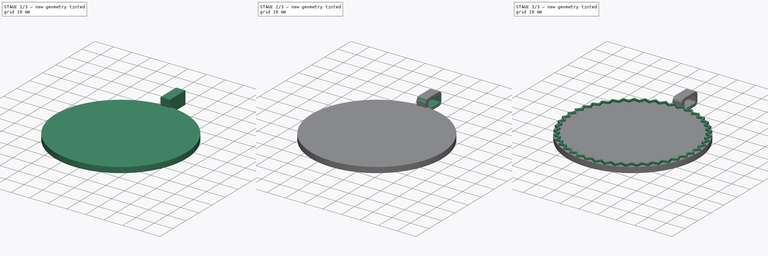
[diagram: build sequence overview — one tinted view per stage of 3, left to right]
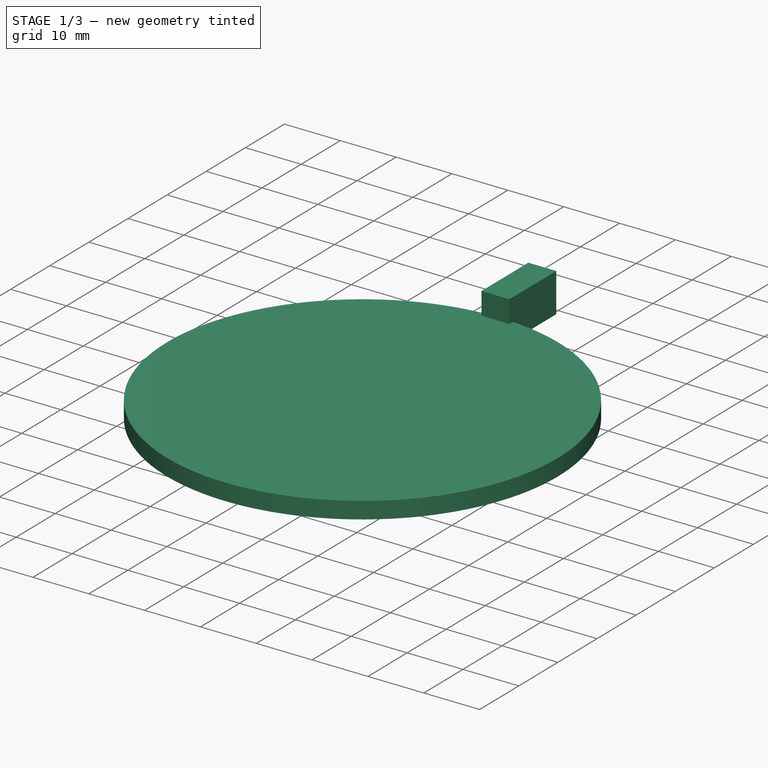
[diagram: stage 1 of 3 — iso view after this stage's code; geometry added in this stage tinted green]
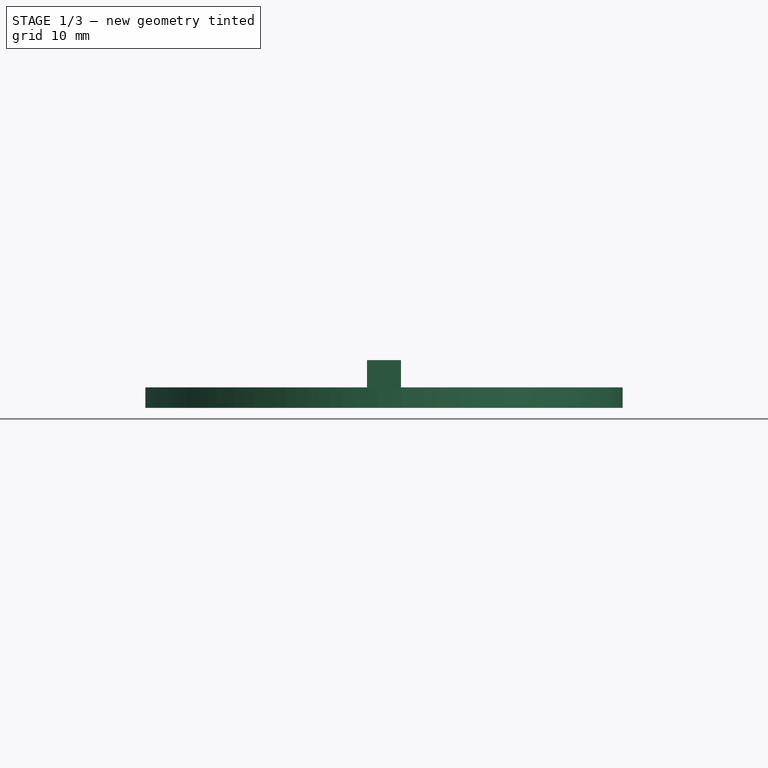
[diagram: stage 1 of 3 — front view after this stage's code; geometry added in this stage tinted green]
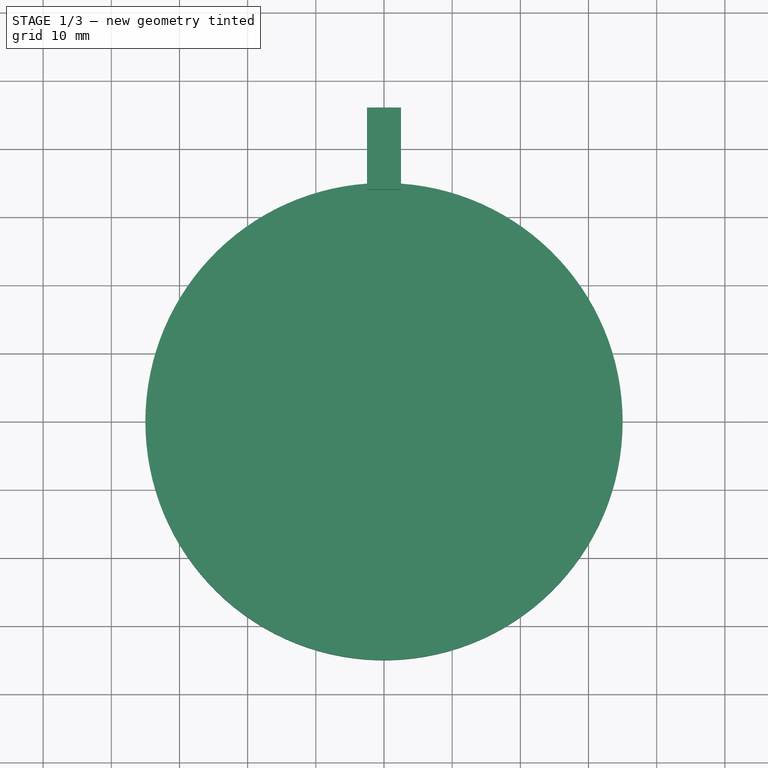
[diagram: stage 1 of 3 — top view after this stage's code; geometry added in this stage tinted green]
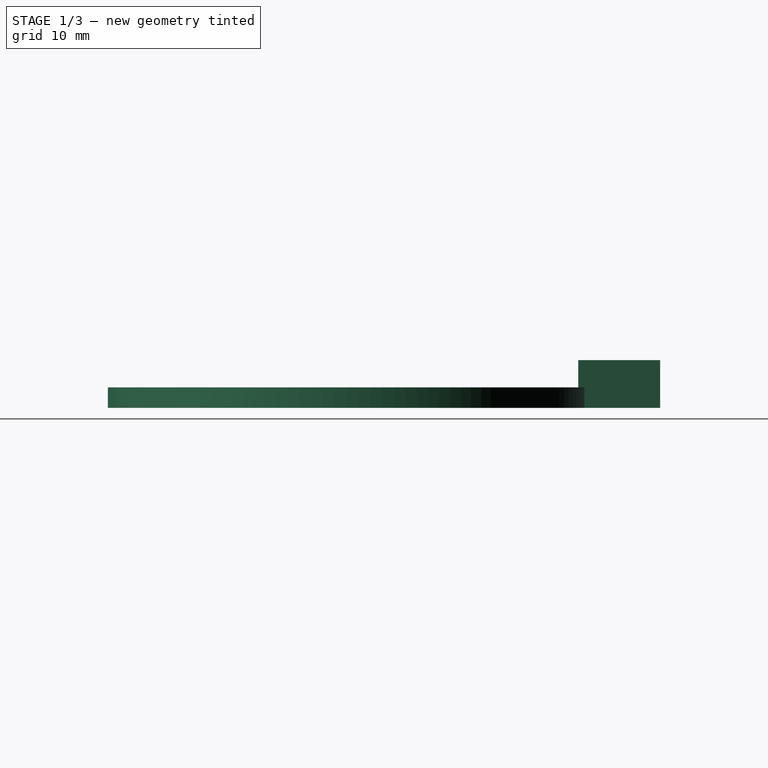
[diagram: stage 1 of 3 — right view after this stage's code; geometry added in this stage tinted green]
FCSTD DOCUMENT  (FreeCAD 1.0R39319 (Git))
Label: медаль кругла 70 х 4 мм з вушком зубчики
License: All rights reserved
LicenseURL: https://en.wikipedia.org/wiki/All_rights_reserved
objects: Sketcher::SketchObject×4, PartDesign::Pad×3, PartDesign::Fillet×1, PartDesign::Pocket×1, PartDesign::PolarPattern×1, PartDesign::Body×1
note: 26 computed .brp shape members not serialized (recipe doc carries the construction recipe); baked Part::Feature solids carry a one-line shape summary decoded from their .brp

FEATURE [Sketcher::SketchObject] Sketch
  ArcFitTolerance = 1e-06
  AttachmentSupport = -> [XY_Plane]
  FullyConstrained = true
  MakeInternals = false
  MapMode = 5
  sketch-geometry (1):
    g0: Circle CenterX=0 CenterY=0 CenterZ=0 NormalX=0 NormalY=0 NormalZ=1 AngleXU=0 Radius=35
  constraints (2):
    c: Diameter(g0) = 70
    c: Coincident(g0,g-1)
FEATURE [PartDesign::Pad] Pad  label="основа"
  Direction = (0,0,1)
  Length = 3
  Length2 = 10
  Profile = -> Sketch
  ReferenceAxis = -> Sketch [N_Axis]
  Refine = true
  Suppressed = false
  Type = 0
FEATURE [Sketcher::SketchObject] Sketch001
  ArcFitTolerance = 1e-06
  AttachmentSupport = -> [XY_Plane]
  FullyConstrained = false
  MakeInternals = false
  MapMode = 5
  sketch-geometry (5):
    g0: LineSegment StartX=-2.5 StartY=34 StartZ=0 EndX=2.5 EndY=34 EndZ=0
    g1: LineSegment StartX=2.5 StartY=34 StartZ=0 EndX=2.5 EndY=46 EndZ=0
    g2: LineSegment StartX=2.5 StartY=46 StartZ=0 EndX=-2.5 EndY=46 EndZ=0
    g3: LineSegment StartX=-2.5 StartY=46 StartZ=0 EndX=-2.5 EndY=34 EndZ=0
    g4: GeomPoint [constr] X=0 Y=40 Z=0
  constraints (12):
    c: Coincident(g0,g1)
    c: Coincident(g1,g2)
    c: Coincident(g2,g3)
    c: Coincident(g3,g0)
    c: Horizontal(g0)
    c: Horizontal(g2)
    c: Vertical(g1)
    c: Vertical(g3)
    c: Symmetric(g2,g0,g4)
    c: Distance(g1,g3) = 5
    c: Distance(g0,g2) = 12
    c: PointOnObject(g4,g-2)
FEATURE [PartDesign::Pad] Pad001  label="вушко"
  BaseFeature = -> Pad
  Direction = (0,0,1)
  Length = 7
  Length2 = 10
  Profile = -> Sketch001
  ReferenceAxis = -> Sketch001 [N_Axis]
  Refine = true
  Suppressed = false
  Type = 0
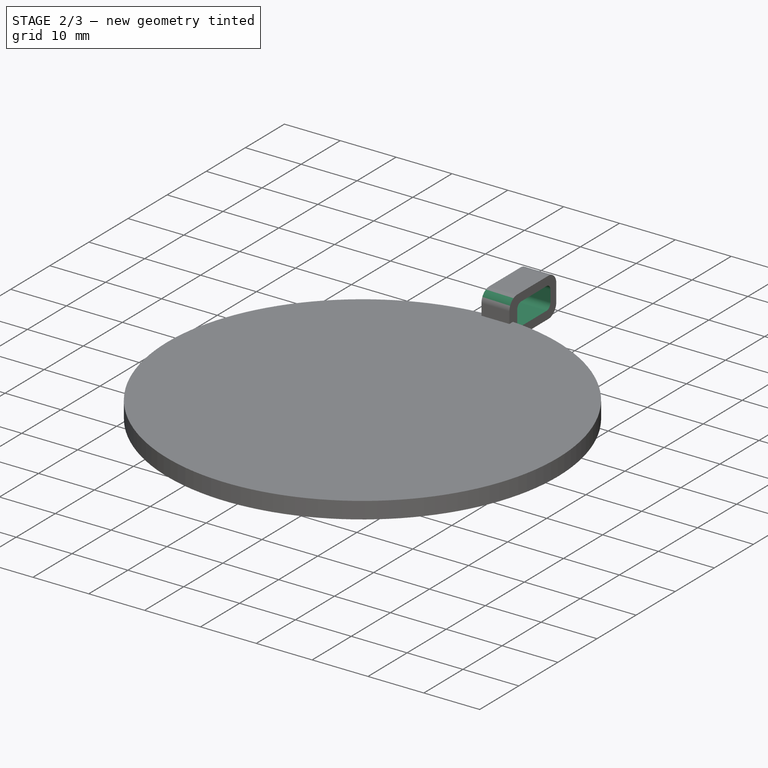
[diagram: stage 2 of 3 — iso view after this stage's code; geometry added in this stage tinted green]
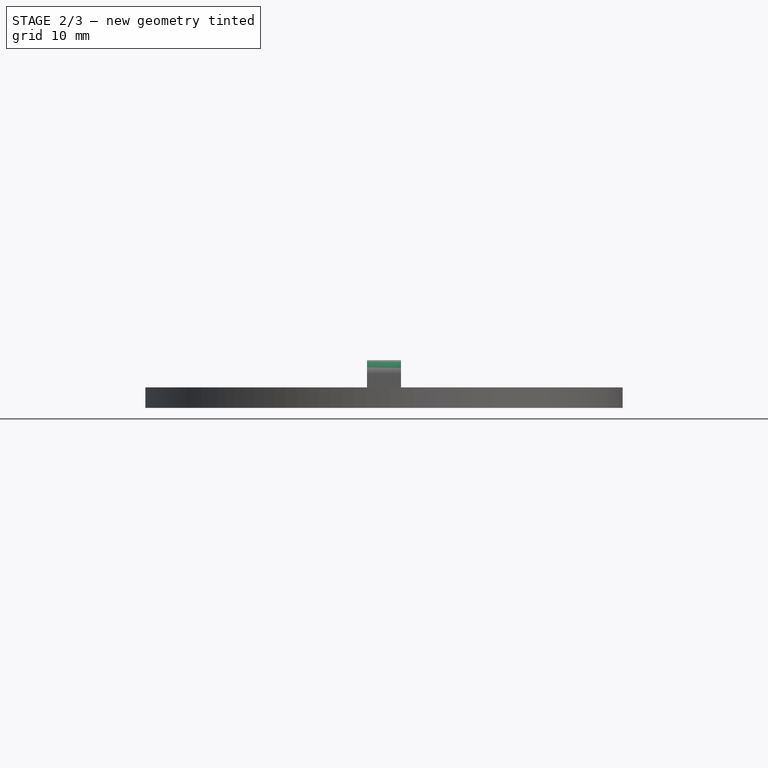
[diagram: stage 2 of 3 — front view after this stage's code; geometry added in this stage tinted green]
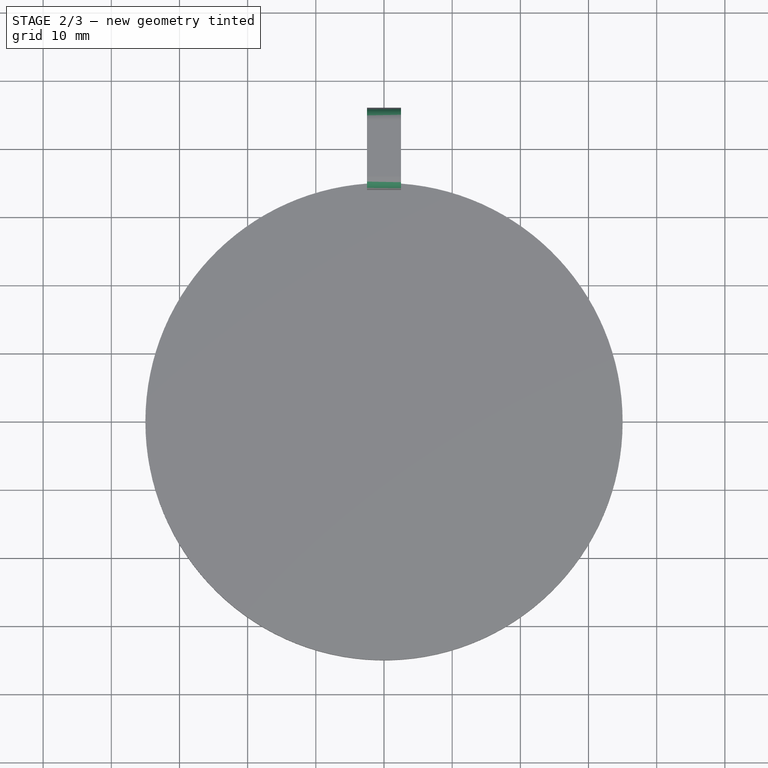
[diagram: stage 2 of 3 — top view after this stage's code; geometry added in this stage tinted green]
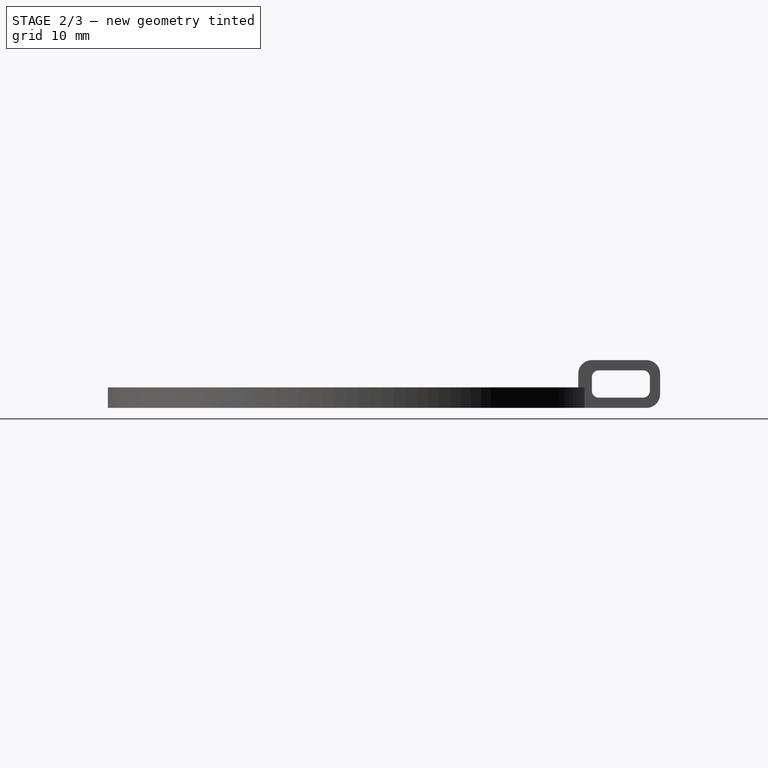
[diagram: stage 2 of 3 — right view after this stage's code; geometry added in this stage tinted green]
FEATURE [PartDesign::Fillet] Fillet
  Base = -> Pad001 [Edge14,Edge13,Edge12]
  BaseFeature = -> Pad001
  Radius = 1.99
  Refine = true
  SupportTransform = false
  Suppressed = false
  UseAllEdges = false
FEATURE [Sketcher::SketchObject] Sketch002
  ArcFitTolerance = 1e-06
  AttachmentSupport = -> [Fillet]
  FullyConstrained = false
  MakeInternals = false
  MapMode = 5
  Placement = pos=(2.5,0,0) rot=(0.57735,0.57735,0.57735;2.0944rad)
  sketch-geometry (10):
    g0: LineSegment StartX=36 StartY=4.5 StartZ=0 EndX=36 EndY=2.5 EndZ=0
    g1: LineSegment StartX=37 StartY=1.5 StartZ=0 EndX=43.5 EndY=1.5 EndZ=0
    g2: LineSegment StartX=44.5 StartY=2.5 StartZ=0 EndX=44.5 EndY=4.5 EndZ=0
    g3: LineSegment StartX=43.5 StartY=5.5 StartZ=0 EndX=37 EndY=5.5 EndZ=0
    g4: ArcOfCircle CenterX=37 CenterY=4.5 CenterZ=0 NormalX=0 NormalY=0 NormalZ=1 AngleXU=0 Radius=1 StartAngle=1.5708 EndAngle=3.14159
    g5: ArcOfCircle CenterX=37 CenterY=2.5 CenterZ=0 NormalX=0 NormalY=0 NormalZ=1 AngleXU=0 Radius=1 StartAngle=3.14159 EndAngle=4.71239
    g6: ArcOfCircle CenterX=43.5 CenterY=2.5 CenterZ=0 NormalX=0 NormalY=0 NormalZ=1 AngleXU=0 Radius=1 StartAngle=4.71239 EndAngle=6.28319
    g7: ArcOfCircle CenterX=43.5 CenterY=4.5 CenterZ=0 NormalX=0 NormalY=0 NormalZ=1 AngleXU=0 Radius=1 StartAngle=0 EndAngle=1.5708
    g8: GeomPoint [constr] X=36 Y=5.5 Z=0
    g9: GeomPoint [constr] X=44.5 Y=1.5 Z=0
  constraints (22):
    c: Tangent(g0,g4) = -1.5708
    c: Tangent(g0,g5) = -1.5708
    c: Tangent(g1,g5) = -1.5708
    c: Tangent(g1,g6) = -1.5708
    c: Tangent(g2,g6) = -1.5708
    c: Tangent(g2,g7) = -1.5708
    c: Tangent(g3,g7) = -1.5708
    c: Tangent(g3,g4) = -1.5708
    c: Vertical(g0)
    c: Vertical(g2)
    c: Horizontal(g1)
    c: Horizontal(g3)
    c: Equal(g4,g5)
    c: Equal(g5,g6)
    c: Equal(g6,g7)
    c: PointOnObject(g8,g0)
    c: PointOnObject(g8,g3)
    c: PointOnObject(g9,g1)
    c: PointOnObject(g9,g2)
    c: Distance(g0,g2) = 8.5
    c: Distance(g1,g3) = 4
    c: Radius(g5) = 1
FEATURE [PartDesign::Pocket] Pocket  label="отвір у вушкі"
  BaseFeature = -> Fillet
  Direction = (-1,0,0)
  Length = 5
  Length2 = 5
  Profile = -> Sketch002
  ReferenceAxis = -> Sketch002 [N_Axis]
  Refine = true
  Suppressed = false
  Type = 0
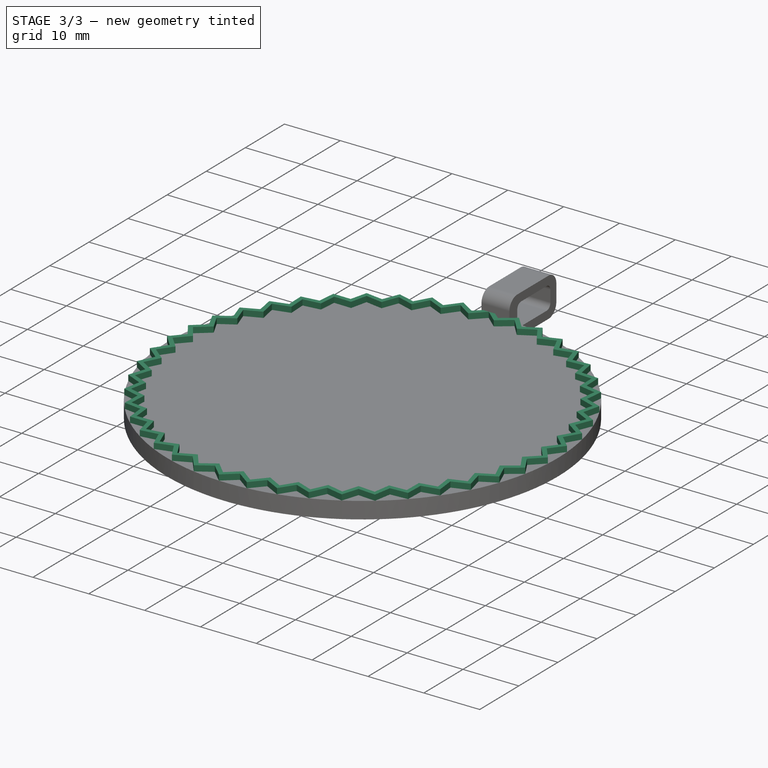
[diagram: stage 3 of 3 — iso view after this stage's code; geometry added in this stage tinted green]
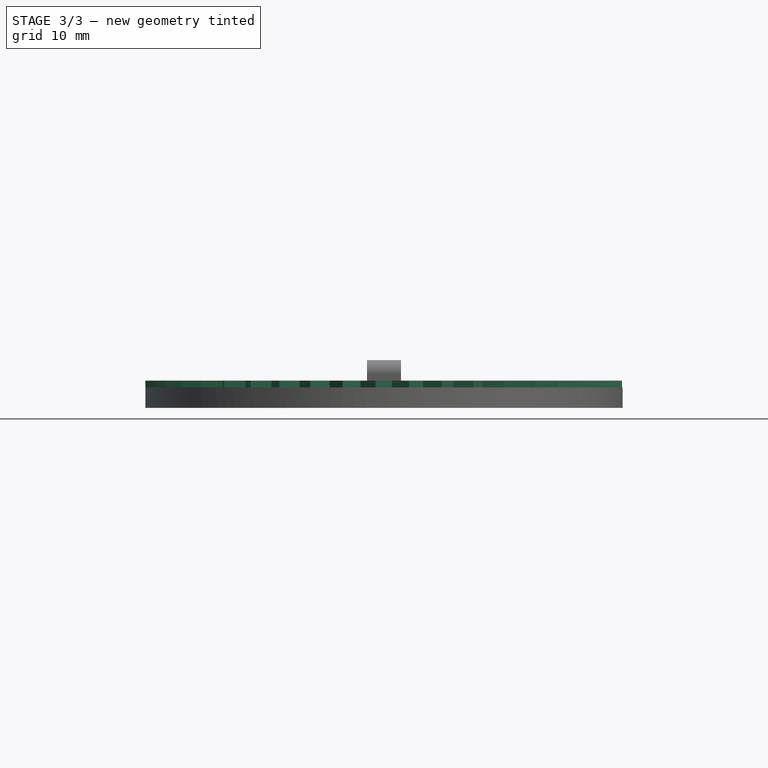
[diagram: stage 3 of 3 — front view after this stage's code; geometry added in this stage tinted green]
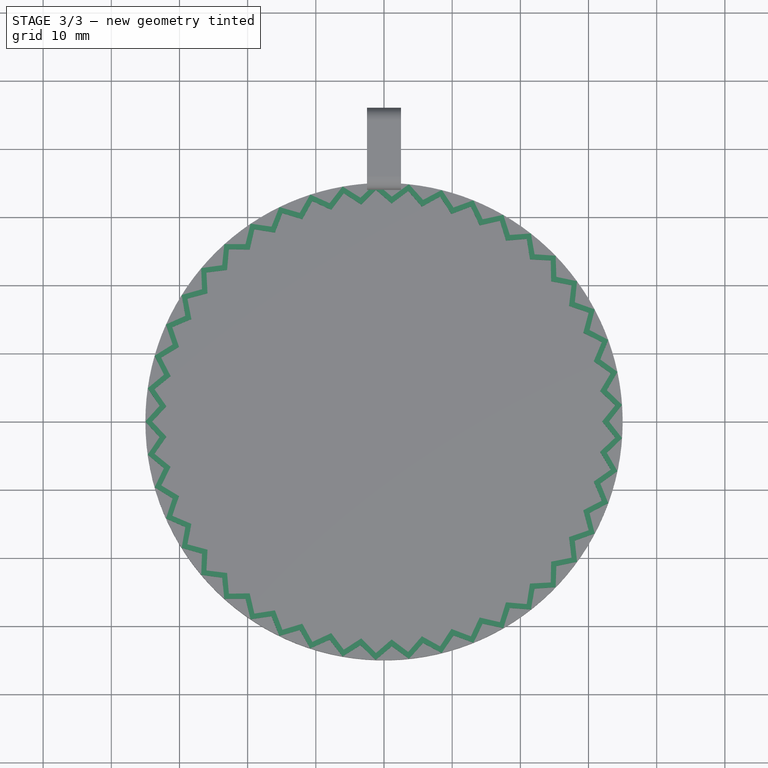
[diagram: stage 3 of 3 — top view after this stage's code; geometry added in this stage tinted green]
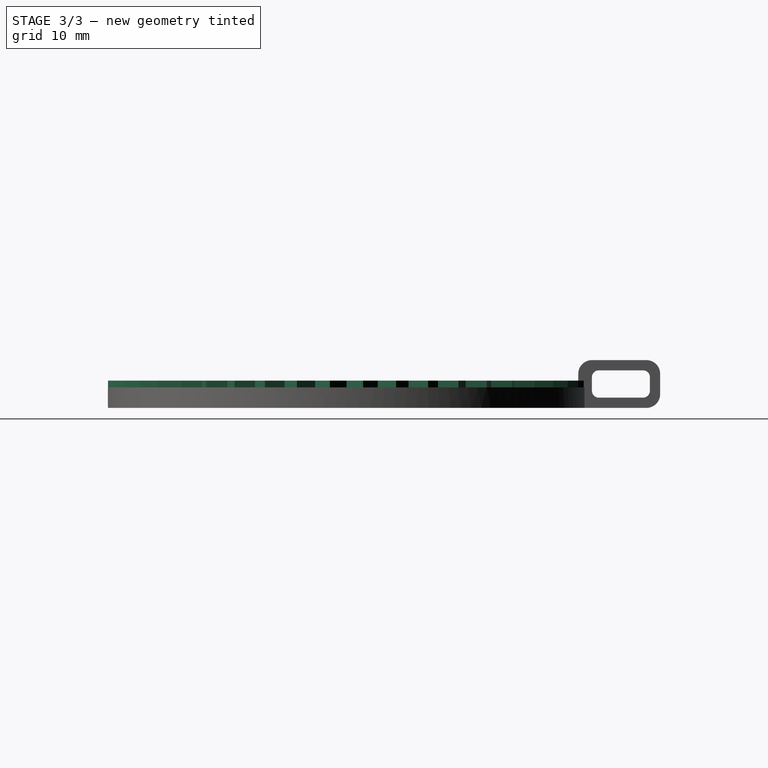
[diagram: stage 3 of 3 — right view after this stage's code; geometry added in this stage tinted green]
FEATURE [Sketcher::SketchObject] Sketch003
  ArcFitTolerance = 1e-06
  AttachmentSupport = -> [Pocket]
  FullyConstrained = false
  MakeInternals = false
  MapMode = 5
  Placement = pos=(0,0,3) rot=(0,0,1;0rad)
  sketch-geometry (18):
    g0: Circle [constr] CenterX=0 CenterY=0 CenterZ=0 NormalX=0 NormalY=0 NormalZ=1 AngleXU=0 Radius=33
    g1: Circle [constr] CenterX=0 CenterY=0 CenterZ=0 NormalX=0 NormalY=0 NormalZ=1 AngleXU=0 Radius=35
    g2: LineSegment [constr] StartX=0 StartY=0 StartZ=0 EndX=39.1714 EndY=0 EndZ=0
    g3: LineSegment [constr] StartX=0 StartY=0 StartZ=0 EndX=39.9827 EndY=-2.79586 EndZ=0
    g4: LineSegment [constr] StartX=0 StartY=0 StartZ=0 EndX=40.813 EndY=-5.73589 EndZ=0
    g5: GeomPoint [constr] X=33 Y=0 Z=0
    g6: GeomPoint [constr] X=34.9147 Y=-2.44148 Z=0
    g7: GeomPoint [constr] X=32.6788 Y=-4.59271 Z=0
    g8: LineSegment StartX=33 StartY=0 StartZ=0 EndX=34.9147 EndY=-2.44148 EndZ=0
    g9: LineSegment StartX=34.9147 StartY=-2.44148 StartZ=0 EndX=32.6788 EndY=-4.59271 EndZ=0
    g10: GeomPoint [constr] X=32 Y=0 Z=0
    g11: GeomPoint [constr] X=33.9172 Y=-2.37172 Z=0
    g12: GeomPoint [constr] X=31.6886 Y=-4.45354 Z=0
    g13: LineSegment StartX=32 StartY=0 StartZ=0 EndX=33.9172 EndY=-2.37172 EndZ=0
    g14: LineSegment StartX=33.9172 StartY=-2.37172 StartZ=0 EndX=31.6886 EndY=-4.45354 EndZ=0
    g15: LineSegment StartX=32 StartY=0 StartZ=0 EndX=33 EndY=0 EndZ=0
    g16: LineSegment StartX=31.6886 StartY=-4.45354 StartZ=0 EndX=32.6788 EndY=-4.59271 EndZ=0
    g17: Circle [constr] CenterX=0 CenterY=0 CenterZ=0 NormalX=0 NormalY=0 NormalZ=1 AngleXU=0 Radius=32
  constraints (36):
    c: Diameter(g0) = 66
    c: Coincident(g0,g-1)
    c: Diameter(g1) = 70
    c: Coincident(g1,g0)
    c: Coincident(g2,g0)
    c: PointOnObject(g2,g-1)
    c: Coincident(g3,g0)
    c: Angle(g-1,g4) = -0.139626
    c: Coincident(g4,g0)
    c: Angle(g3,g2) = 0.0698132
    c: PointOnObject(g5,g0)
    c: PointOnObject(g7,g0)
    c: PointOnObject(g5,g2)
    c: PointOnObject(g7,g4)
    c: Coincident(g8,g5)
    c: Coincident(g8,g6)
    c: Coincident(g8,g9)
    c: Coincident(g9,g7)
    c: PointOnObject(g10,g2)
    c: PointOnObject(g11,g3)
    c: PointOnObject(g12,g4)
    c: DistanceX(g0,g10) = 32
    c: Coincident(g13,g10)
    c: Coincident(g13,g11)
    c: Coincident(g13,g14)
    c: Coincident(g14,g12)
    c: PointOnObject(g6,g3)
    c: PointOnObject(g6,g1)
    c: Distance(g12,g-1) = 32
    c: Coincident(g15,g10)
    c: Coincident(g15,g5)
    c: Coincident(g16,g12)
    c: Coincident(g16,g7)
    c: Distance(g11,g-1) = 34
    c: Diameter(g17) = 64
    c: Coincident(g17,g0)
FEATURE [PartDesign::Pad] Pad002
  BaseFeature = -> Pocket
  Direction = (0,0,1)
  Length = 1
  Length2 = 10
  Profile = -> Sketch003
  ReferenceAxis = -> Sketch003 [N_Axis]
  Refine = true
  Suppressed = false
  Type = 0
FEATURE [PartDesign::PolarPattern] PolarPattern
  Angle = 360
  Axis = -> Sketch003 [N_Axis]
  BaseFeature = -> Pad002
  Mode = 0
  Occurrences = 45
  Offset = 120
  Originals = -> [Pad002]
  Refine = true
  Suppressed = false
  TransformMode = 0
FEATURE [PartDesign::Body] Body  label="Тіло"
  AllowCompound = false
  Group = -> [Sketch,Pad,Sketch001,Pad001,Fillet,Sketch002,Pocket,Sketch003,Pad002,PolarPattern]
  Origin = -> Origin
  Tip = -> PolarPattern
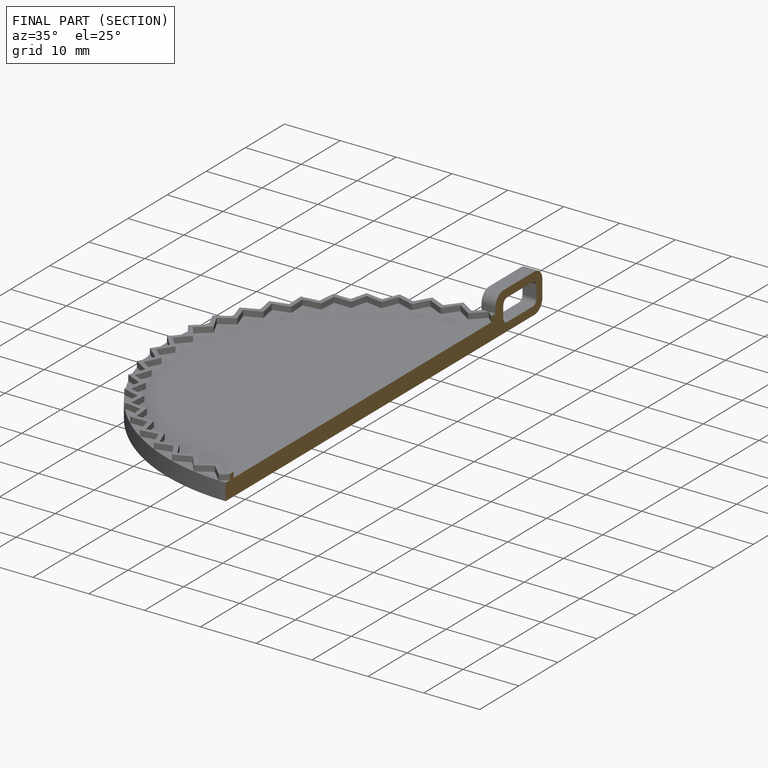
[diagram: finished part — half-section view (interior)]
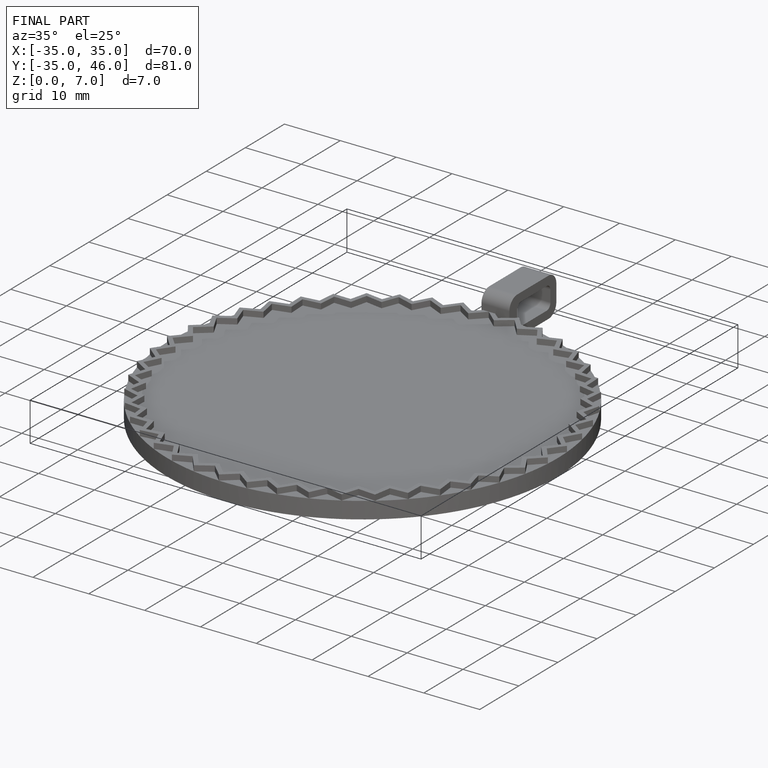
[diagram: finished part — iso view with bounding-box wireframe]
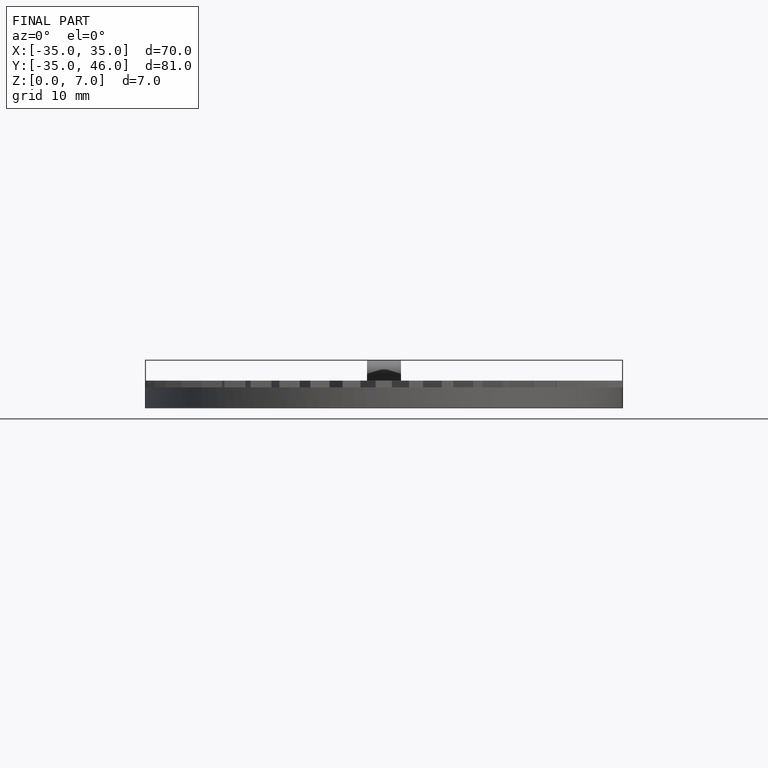
[diagram: finished part — front view with bounding-box wireframe]
